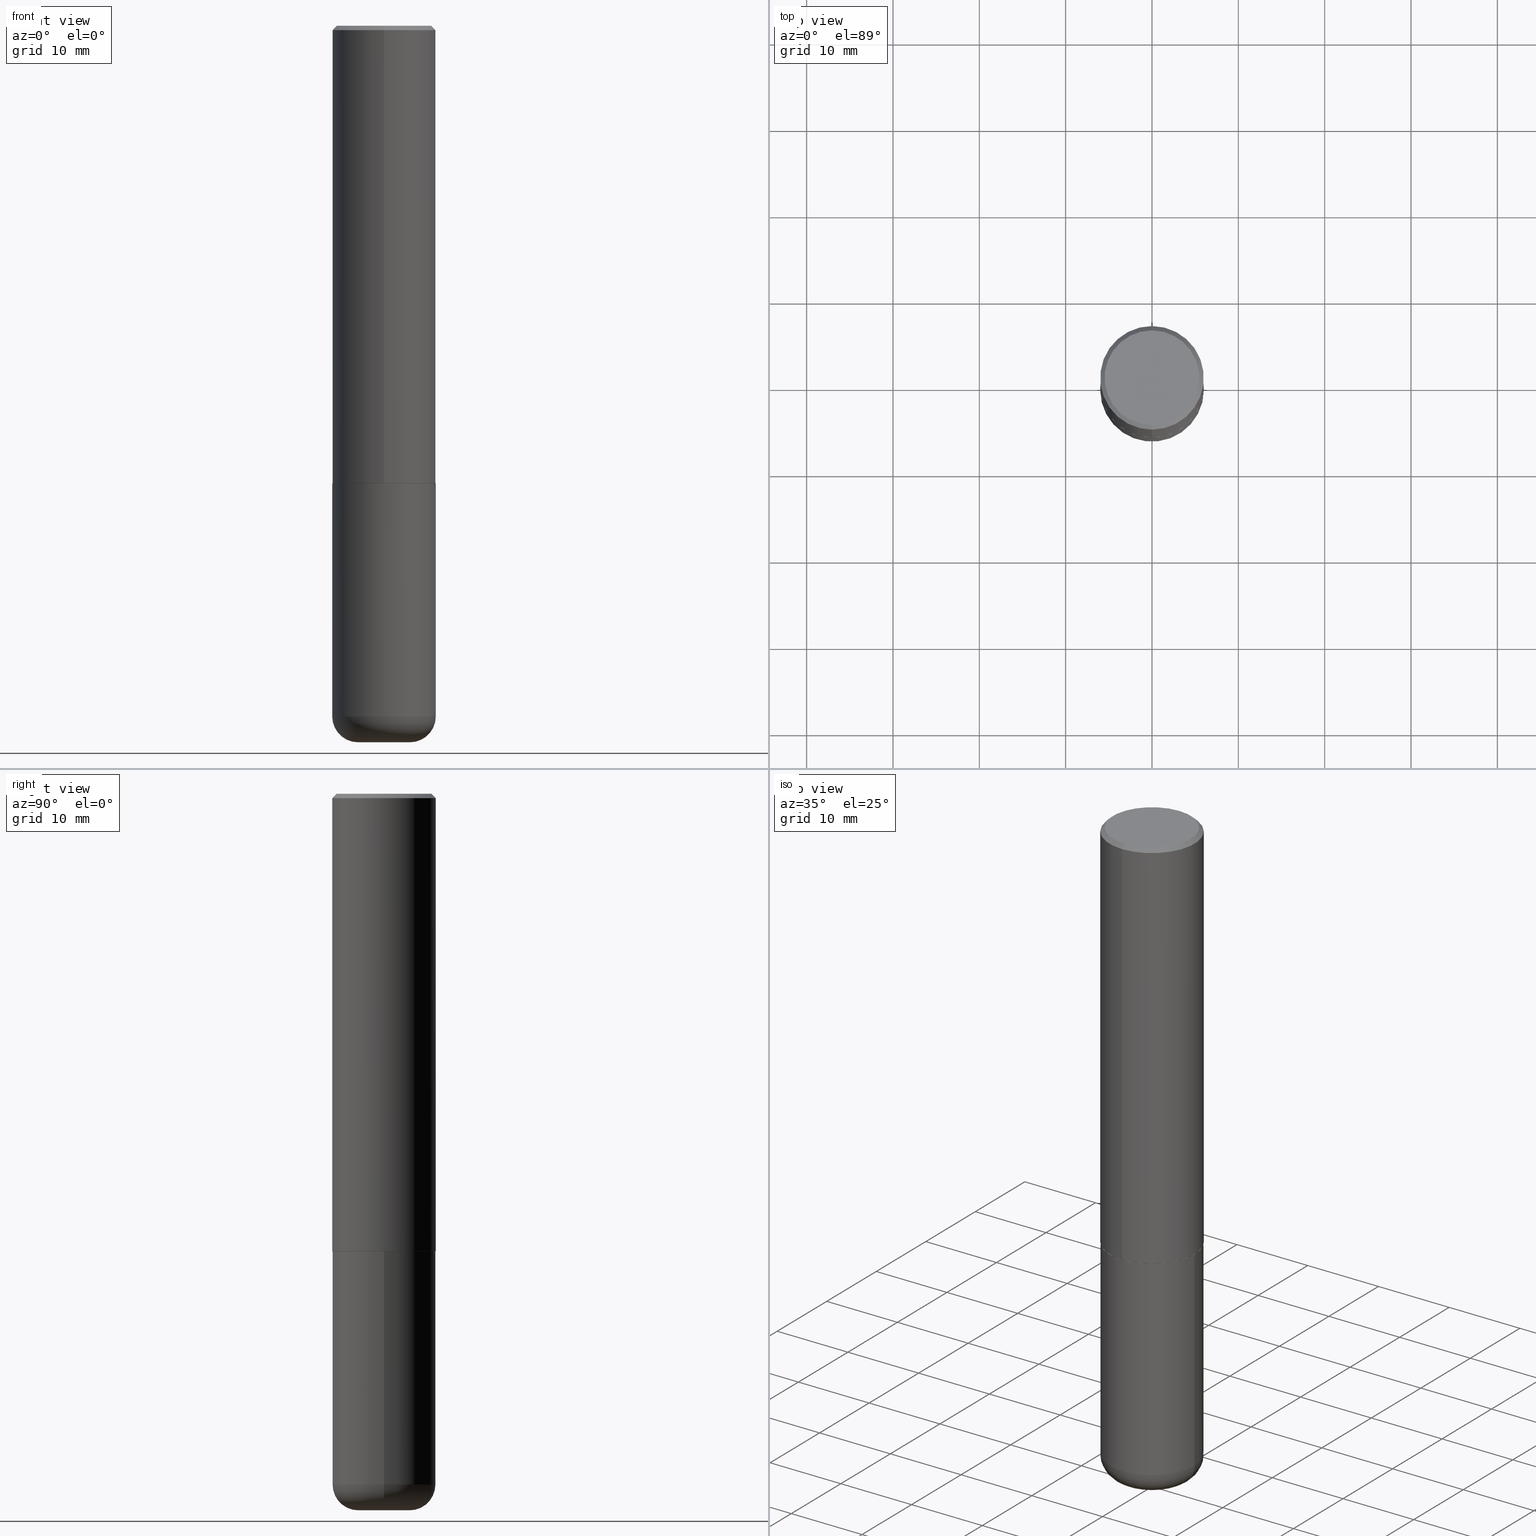
[diagram: canonical four-view strip — front | top / right | iso, engineering-drawing reading convention]
A machine part, canonical four-view strip (front | top / right | iso — engineering-drawing reading convention). The complete STEP part file that produces these views, byte-faithful:
ISO-10303-21;
HEADER;
FILE_DESCRIPTION (( 'STEP AP203' ),
    '1' );
FILE_NAME ('74690.STEP',
    '2024-05-02T19:14:01',
    ( '' ),
    ( '' ),
    'SwSTEP 2.0',
    'SolidWorks 2023',
    '' );
FILE_SCHEMA (( 'CONFIG_CONTROL_DESIGN' ));
ENDSEC;

DATA;
#1 = AXIS2_PLACEMENT_3D ( 'NONE', #161, #235, #263 ) ;
#2 = EDGE_LOOP ( 'NONE', ( #391, #107 ) ) ;
#3 = CC_DESIGN_PERSON_AND_ORGANIZATION_ASSIGNMENT ( #199, #99, ( #407 ) ) ;
#4 = DATE_AND_TIME ( #173, #131 ) ;
#5 = ORIENTED_EDGE ( 'NONE', *, *, #366, .F. ) ;
#6 = DIRECTION ( 'NONE',  ( -6.982962677686265922E-15, -1.000000000000000000, 3.490920090629483706E-15 ) ) ;
#7 = CONICAL_SURFACE ( 'NONE', #248, 0.2351999999999999924, 0.7853981633973970977 ) ;
#8 =( CONVERSION_BASED_UNIT ( 'INCH', #300 ) LENGTH_UNIT ( ) NAMED_UNIT ( #180 ) );
#9 = ORIENTED_EDGE ( 'NONE', *, *, #24, .F. ) ;
#10 = PERSON_AND_ORGANIZATION ( #216, #317 ) ;
#11 = PRODUCT_DEFINITION_SHAPE ( 'NONE', 'NONE',  #262 ) ;
#12 = ORIENTED_EDGE ( 'NONE', *, *, #245, .T. ) ;
#13 = SHAPE_DEFINITION_REPRESENTATION ( #11, #132 ) ;
#14 = CYLINDRICAL_SURFACE ( 'NONE', #213, 0.2361999999999999933 ) ;
#15 = AXIS2_PLACEMENT_3D ( 'NONE', #74, #127, #210 ) ;
#16 = LOCAL_TIME ( 15, 14, 1.000000000000000000, #357 ) ;
#17 = AXIS2_PLACEMENT_3D ( 'NONE', #360, #94, #335 ) ;
#18 = DIRECTION ( 'NONE',  ( 4.937700262164543309E-15, 0.7071067811865444641, -0.7071067811865506814 ) ) ;
#19 = EDGE_CURVE ( 'NONE', #200, #367, #59, .T. ) ;
#20 = CARTESIAN_POINT ( 'NONE',  ( 0.2361999999999999933, -1.649375784469496131E-15, 1.151752954443000088E-29 ) ) ;
#21 = DIRECTION ( 'NONE',  ( -4.937700262164294818E-15, -0.7071067811865088260, 0.7071067811865862085 ) ) ;
#22 = CIRCLE ( 'NONE', #170, 0.1181000000000000105 ) ;
#23 = DIRECTION ( 'NONE',  ( 1.000000000000000000, -6.982962677686265133E-15, 0.000000000000000000 ) ) ;
#24 = EDGE_CURVE ( 'NONE', #255, #192, #169, .T. ) ;
#25 = CARTESIAN_POINT ( 'NONE',  ( 1.674749228186607758E-15, 0.2351999999999927204, -2.086600000000001121 ) ) ;
#26 = UNCERTAINTY_MEASURE_WITH_UNIT (LENGTH_MEASURE( 1.000000000000000082E-05 ), #8, 'distance_accuracy_value', 'NONE');
#27 = ORIENTED_EDGE ( 'NONE', *, *, #44, .F. ) ;
#28 = CARTESIAN_POINT ( 'NONE',  ( 0.1180999999999999966, -1.182145751705512057E-14, -3.149600000000000399 ) ) ;
#29 = CONICAL_SURFACE ( 'NONE', #347, 0.2351999999999999924, 0.7853981633973970977 ) ;
#30 = CARTESIAN_POINT ( 'NONE',  ( 5.103532986110039868E-29, -7.284153861107481765E-15, -2.086600000000000232 ) ) ;
#31 = FACE_OUTER_BOUND ( 'NONE', #87, .T. ) ;
#32 = EDGE_LOOP ( 'NONE', ( #229, #253, #413, #318 ) ) ;
#33 = CYLINDRICAL_SURFACE ( 'NONE', #310, 0.2362000000000000766 ) ;
#34 = CARTESIAN_POINT ( 'NONE',  ( -0.2361999999999999933, -7.462745351359882680E-15, -2.086600000000000232 ) ) ;
#35 = AXIS2_PLACEMENT_3D ( 'NONE', #181, #273, #276 ) ;
#36 = APPROVAL ( #128, 'UNSPECIFIED' ) ;
#37 = APPLICATION_PROTOCOL_DEFINITION ( 'international standard', 'config_control_design', 1994, #158 ) ;
#38 = VERTEX_POINT ( 'NONE', #336 ) ;
#39 = PERSON_AND_ORGANIZATION ( #216, #317 ) ;
#40 = ORIENTED_EDGE ( 'NONE', *, *, #286, .T. ) ;
#41 = CARTESIAN_POINT ( 'NONE',  ( -3.651097613894796322E-45, 5.211126655576527214E-31, 1.492765952897207328E-16 ) ) ;
#42 = VECTOR ( 'NONE', #275, 39.37007874015748143 ) ;
#43 = DATE_AND_TIME ( #130, #16 ) ;
#44 = EDGE_CURVE ( 'NONE', #120, #136, #398, .T. ) ;
#45 = DATE_TIME_ROLE ( 'classification_date' ) ;
#46 = FACE_OUTER_BOUND ( 'NONE', #266, .T. ) ;
#47 = CARTESIAN_POINT ( 'NONE',  ( -3.651097613894796322E-45, 5.211126655576527214E-31, 1.492765952897207328E-16 ) ) ;
#48 = AXIS2_PLACEMENT_3D ( 'NONE', #80, #113, #79 ) ;
#49 = DATE_AND_TIME ( #241, #334 ) ;
#50 = DIRECTION ( 'NONE',  ( -2.445468806185136597E-29, 3.491481338843145583E-15, 1.000000000000000000 ) ) ;
#51 = PLANE ( 'NONE',  #35 ) ;
#52 = DIRECTION ( 'NONE',  ( -2.445468806185136597E-29, 3.491481338843145583E-15, 1.000000000000000000 ) ) ;
#53 = VECTOR ( 'NONE', #212, 39.37007874015748854 ) ;
#54 = CARTESIAN_POINT ( 'NONE',  ( -0.2361999999999998545, -9.318467682955017493E-15, -3.149600000000000399 ) ) ;
#55 = DIRECTION ( 'NONE',  ( 6.982962677686265922E-15, 1.000000000000000000, -3.487819265831412533E-15 ) ) ;
#56 = CARTESIAN_POINT ( 'NONE',  ( 0.2361999999999999933, -8.934700746099602364E-15, -2.086600000000000232 ) ) ;
#57 = ORIENTED_EDGE ( 'NONE', *, *, #76, .F. ) ;
#58 = EDGE_CURVE ( 'NONE', #289, #38, #376, .T. ) ;
#59 = CIRCLE ( 'NONE', #298, 0.2351999999999999924 ) ;
#60 = CIRCLE ( 'NONE', #299, 0.1180999999999997191 ) ;
#61 = DIRECTION ( 'NONE',  ( -6.982962677686265133E-15, -1.000000000000000000, 3.484499991918703113E-15 ) ) ;
#62 = DIRECTION ( 'NONE',  ( 2.438088387897960049E-29, -3.491481338843145188E-15, -1.000000000000000000 ) ) ;
#63 = VERTEX_POINT ( 'NONE', #34 ) ;
#64 = APPROVAL_DATE_TIME ( #356, #187 ) ;
#65 = EDGE_CURVE ( 'NONE', #264, #63, #332, .T. ) ;
#66 = PERSON_AND_ORGANIZATION_ROLE ( 'design_owner' ) ;
#67 =( GEOMETRIC_REPRESENTATION_CONTEXT ( 3 ) GLOBAL_UNCERTAINTY_ASSIGNED_CONTEXT ( ( #26 ) ) GLOBAL_UNIT_ASSIGNED_CONTEXT ( ( #8, #102, #165 ) ) REPRESENTATION_CONTEXT ( 'NONE', 'WORKASPACE' ) );
#68 = VERTEX_POINT ( 'NONE', #402 ) ;
#69 = MECHANICAL_CONTEXT ( 'NONE', #158, 'mechanical' ) ;
#70 = PERSON_AND_ORGANIZATION_ROLE ( 'creator' ) ;
#71 = EDGE_CURVE ( 'NONE', #192, #255, #293, .T. ) ;
#72 = VECTOR ( 'NONE', #21, 39.37007874015748143 ) ;
#73 = PRODUCT ( '74690', '74690', '', ( #69 ) ) ;
#74 = CARTESIAN_POINT ( 'NONE',  ( 7.702248551960706711E-29, -1.099676962482037231E-14, -3.149600000000000399 ) ) ;
#75 = CARTESIAN_POINT ( 'NONE',  ( 1.678301941865383018E-15, 0.2361999999999929711, -2.085600000000000787 ) ) ;
#76 = EDGE_CURVE ( 'NONE', #207, #120, #325, .T. ) ;
#77 = CARTESIAN_POINT ( 'NONE',  ( 1.671196514507806268E-15, 0.2351999999999927204, -2.086600000000001121 ) ) ;
#78 = CIRCLE ( 'NONE', #371, 0.2361999999999999933 ) ;
#79 = DIRECTION ( 'NONE',  ( -1.000000000000000000, 6.982962677686265922E-15, -4.876176775795935793E-29 ) ) ;
#80 = CARTESIAN_POINT ( 'NONE',  ( 1.854752379248560054E-28, 3.708345682062602648E-15, -3.267699999999999605 ) ) ;
#81 = MANIFOLD_SOLID_BREP ( 'Body-Move/Copy2[2]', #305 ) ;
#82 = AXIS2_PLACEMENT_3D ( 'NONE', #222, #350, #320 ) ;
#83 = CC_DESIGN_SECURITY_CLASSIFICATION ( #214, ( #407 ) ) ;
#84 = DIRECTION ( 'NONE',  ( -2.445860723718028373E-29, 3.490920090629483706E-15, 1.000000000000000000 ) ) ;
#85 = DIRECTION ( 'NONE',  ( -1.000000000000000000, 6.982962677686265922E-15, -4.876176775795935793E-29 ) ) ;
#86 = CC_DESIGN_PERSON_AND_ORGANIZATION_ASSIGNMENT ( #393, #70, ( #262 ) ) ;
#87 = EDGE_LOOP ( 'NONE', ( #329, #166 ) ) ;
#88 = DIRECTION ( 'NONE',  ( 1.000000000000000000, -6.982962677686265133E-15, 0.000000000000000000 ) ) ;
#89 = ORIENTED_EDGE ( 'NONE', *, *, #271, .T. ) ;
#90 = MANIFOLD_SOLID_BREP ( 'Body-Move/Copy2[1]', #193 ) ;
#91 = CARTESIAN_POINT ( 'NONE',  ( 5.103532986110038747E-29, -7.284153861107480187E-15, -2.086600000000000232 ) ) ;
#92 = ORIENTED_EDGE ( 'NONE', *, *, #137, .T. ) ;
#93 = ADVANCED_FACE ( 'NONE', ( #183 ), #340, .T. ) ;
#94 = DIRECTION ( 'NONE',  ( 0.000000000000000000, 0.000000000000000000, 1.000000000000000000 ) ) ;
#95 = ORIENTED_EDGE ( 'NONE', *, *, #145, .T. ) ;
#96 = ORIENTED_EDGE ( 'NONE', *, *, #65, .F. ) ;
#97 = APPROVAL_DATE_TIME ( #43, #36 ) ;
#98 = VECTOR ( 'NONE', #184, 39.37007874015748143 ) ;
#99 = PERSON_AND_ORGANIZATION_ROLE ( 'design_supplier' ) ;
#100 = DIRECTION ( 'NONE',  ( -2.445860723718028373E-29, 3.490920090629483706E-15, 1.000000000000000000 ) ) ;
#101 = ORIENTED_EDGE ( 'NONE', *, *, #257, .T. ) ;
#102 =( NAMED_UNIT ( * ) PLANE_ANGLE_UNIT ( ) SI_UNIT ( $, .RADIAN. ) );
#103 = ORIENTED_EDGE ( 'NONE', *, *, #19, .T. ) ;
#104 = ORIENTED_EDGE ( 'NONE', *, *, #344, .T. ) ;
#105 = CARTESIAN_POINT ( 'NONE',  ( 1.678301941865356789E-15, 0.2362000000000000766, -8.245553254066843076E-16 ) ) ;
#106 = AXIS2_PLACEMENT_3D ( 'NONE', #163, #294, #23 ) ;
#107 = ORIENTED_EDGE ( 'NONE', *, *, #71, .T. ) ;
#108 = AXIS2_PLACEMENT_3D ( 'NONE', #368, #111, #280 ) ;
#109 = DATE_AND_TIME ( #148, #348 ) ;
#110 = EDGE_CURVE ( 'NONE', #289, #63, #143, .T. ) ;
#111 = DIRECTION ( 'NONE',  ( -2.445860723718028373E-29, 3.490920090629483706E-15, 1.000000000000000000 ) ) ;
#112 = DIRECTION ( 'NONE',  ( 6.982962677686265922E-15, 1.000000000000000000, -3.487819265831412533E-15 ) ) ;
#113 = DIRECTION ( 'NONE',  ( 2.438088387897960049E-29, -3.491481338843145188E-15, -1.000000000000000000 ) ) ;
#114 = VECTOR ( 'NONE', #261, 39.37007874015748143 ) ;
#115 = LOCAL_TIME ( 15, 14, 1.000000000000000000, #228 ) ;
#116 = DIRECTION ( 'NONE',  ( 1.000000000000000000, -6.982962677686272233E-15, 0.000000000000000000 ) ) ;
#117 = ADVANCED_FACE ( 'NONE', ( #46 ), #359, .T. ) ;
#118 = CARTESIAN_POINT ( 'NONE',  ( 0.000000000000000000, 0.000000000000000000, 0.000000000000000000 ) ) ;
#119 = DIRECTION ( 'NONE',  ( -6.982962677686265133E-15, -1.000000000000000000, 3.484499991918703113E-15 ) ) ;
#120 = VERTEX_POINT ( 'NONE', #75 ) ;
#121 = DIRECTION ( 'NONE',  ( -2.445860723718028373E-29, 3.490920090629483706E-15, 1.000000000000000000 ) ) ;
#122 = DIRECTION ( 'NONE',  ( -2.445468806185136597E-29, 3.491481338843145583E-15, 1.000000000000000000 ) ) ;
#123 = DIRECTION ( 'NONE',  ( 2.445860723718028373E-29, -3.490920090629483706E-15, -1.000000000000000000 ) ) ;
#124 = CC_DESIGN_PERSON_AND_ORGANIZATION_ASSIGNMENT ( #39, #168, ( #407 ) ) ;
#125 = AXIS2_PLACEMENT_3D ( 'NONE', #345, #52, #242 ) ;
#126 = DIRECTION ( 'NONE',  ( -2.445860723718028373E-29, 3.490920090629483706E-15, 1.000000000000000000 ) ) ;
#127 = DIRECTION ( 'NONE',  ( -2.445468806185136597E-29, 3.491481338843145583E-15, 1.000000000000000000 ) ) ;
#128 = APPROVAL_STATUS ( 'not_yet_approved' ) ;
#129 = EDGE_LOOP ( 'NONE', ( #270, #89, #12, #5 ) ) ;
#130 = CALENDAR_DATE ( 2024, 2, 5 ) ;
#131 = LOCAL_TIME ( 15, 14, 1.000000000000000000, #295 ) ;
#132 = ADVANCED_BREP_SHAPE_REPRESENTATION ( '74690', ( #90, #81, #17 ), #67 ) ;
#133 =( LENGTH_UNIT ( ) NAMED_UNIT ( * ) SI_UNIT ( $, .METRE. ) );
#134 = ORIENTED_EDGE ( 'NONE', *, *, #366, .T. ) ;
#135 = CALENDAR_DATE ( 2024, 2, 5 ) ;
#136 = VERTEX_POINT ( 'NONE', #408 ) ;
#137 = EDGE_CURVE ( 'NONE', #285, #233, #278, .T. ) ;
#138 = FACE_OUTER_BOUND ( 'NONE', #227, .T. ) ;
#139 = CIRCLE ( 'NONE', #231, 0.2351999999999999924 ) ;
#140 = CONICAL_SURFACE ( 'NONE', #333, 0.2361999999999999378, 0.7853981633974473908 ) ;
#141 = COORDINATED_UNIVERSAL_TIME_OFFSET ( 5, 0, .BEHIND. ) ;
#142 = DIRECTION ( 'NONE',  ( 1.000000000000000000, -6.982962677686264344E-15, 4.883557194083111780E-29 ) ) ;
#143 = LINE ( 'NONE', #337, #42 ) ;
#144 = CARTESIAN_POINT ( 'NONE',  ( -1.642392821791758643E-15, -0.2352000000000072644, -2.086599999999999344 ) ) ;
#145 = EDGE_CURVE ( 'NONE', #38, #264, #178, .T. ) ;
#146 = CIRCLE ( 'NONE', #386, 0.2362000000000002431 ) ;
#147 = APPROVAL_PERSON_ORGANIZATION ( #269, #36, #328 ) ;
#148 = CALENDAR_DATE ( 2024, 2, 5 ) ;
#149 = DIRECTION ( 'NONE',  ( 2.445860723718028373E-29, -3.490920090629483706E-15, -1.000000000000000000 ) ) ;
#150 = DESIGN_CONTEXT ( 'detailed design', #189, 'design' ) ;
#151 = FACE_OUTER_BOUND ( 'NONE', #129, .T. ) ;
#152 = EDGE_CURVE ( 'NONE', #207, #68, #306, .T. ) ;
#153 = CARTESIAN_POINT ( 'NONE',  ( 5.102715210985906276E-29, -7.285324961630107416E-15, -2.086600000000000232 ) ) ;
#154 = AXIS2_PLACEMENT_3D ( 'NONE', #249, #307, #142 ) ;
#155 = APPROVAL_PERSON_ORGANIZATION ( #10, #187, #232 ) ;
#156 = DIRECTION ( 'NONE',  ( 1.000000000000000000, -6.982962677686273021E-15, 0.000000000000000000 ) ) ;
#157 = PLANE ( 'NONE',  #185 ) ;
#158 = APPLICATION_CONTEXT ( 'configuration controlled 3d designs of mechanical parts and assemblies' ) ;
#159 = FACE_OUTER_BOUND ( 'NONE', #351, .T. ) ;
#160 = EDGE_CURVE ( 'NONE', #255, #136, #211, .T. ) ;
#161 = CARTESIAN_POINT ( 'NONE',  ( 4.891721447436068727E-31, -6.981840181258985900E-17, -0.02000000000000005246 ) ) ;
#162 = APPROVAL_PERSON_ORGANIZATION ( #243, #323, #339 ) ;
#163 = CARTESIAN_POINT ( 'NONE',  ( 5.102715210985906276E-29, -7.285324961630107416E-15, -2.086600000000000232 ) ) ;
#164 = EDGE_LOOP ( 'NONE', ( #27, #134, #174, #204 ) ) ;
#165 =( NAMED_UNIT ( * ) SI_UNIT ( $, .STERADIAN. ) SOLID_ANGLE_UNIT ( ) );
#166 = ORIENTED_EDGE ( 'NONE', *, *, #271, .F. ) ;
#167 = ADVANCED_FACE ( 'NONE', ( #309 ), #353, .T. ) ;
#168 = PERSON_AND_ORGANIZATION_ROLE ( 'creator' ) ;
#169 = CIRCLE ( 'NONE', #223, 0.2161999999999997535 ) ;
#170 = AXIS2_PLACEMENT_3D ( 'NONE', #219, #122, #411 ) ;
#171 = DIRECTION ( 'NONE',  ( -6.982962677686266711E-15, -1.000000000000000000, 3.490920090629483706E-15 ) ) ;
#172 = ORIENTED_EDGE ( 'NONE', *, *, #110, .T. ) ;
#173 = CALENDAR_DATE ( 2024, 2, 5 ) ;
#174 = ORIENTED_EDGE ( 'NONE', *, *, #152, .T. ) ;
#175 = COORDINATED_UNIVERSAL_TIME_OFFSET ( 5, 0, .BEHIND. ) ;
#176 = CARTESIAN_POINT ( 'NONE',  ( 7.991058417971169471E-29, -1.140911357093774486E-14, -3.267699999999999605 ) ) ;
#177 = PERSON_AND_ORGANIZATION_ROLE ( 'classification_officer' ) ;
#178 = LINE ( 'NONE', #20, #400 ) ;
#179 = VECTOR ( 'NONE', #18, 39.37007874015748143 ) ;
#180 = DIMENSIONAL_EXPONENTS ( 1.000000000000000000, 0.000000000000000000, 0.000000000000000000, 0.000000000000000000, 0.000000000000000000, 0.000000000000000000, 0.000000000000000000 ) ;
#181 = CARTESIAN_POINT ( 'NONE',  ( 1.509716530915769140E-15, 0.2161999999999997535, -6.800986259492332687E-16 ) ) ;
#182 = ADVANCED_FACE ( 'NONE', ( #409 ), #14, .T. ) ;
#183 = FACE_OUTER_BOUND ( 'NONE', #399, .T. ) ;
#184 = DIRECTION ( 'NONE',  ( -2.445860723718028093E-29, 3.490920090629484100E-15, 1.000000000000000000 ) ) ;
#185 = AXIS2_PLACEMENT_3D ( 'NONE', #91, #226, #354 ) ;
#186 = DIRECTION ( 'NONE',  ( 1.000000000000000000, -6.982962677686264344E-15, 4.883557194083111780E-29 ) ) ;
#187 = APPROVAL ( #265, 'UNSPECIFIED' ) ;
#188 = DIRECTION ( 'NONE',  ( -2.445860723718028373E-29, 3.490920090629483706E-15, 1.000000000000000000 ) ) ;
#189 = APPLICATION_CONTEXT ( 'configuration controlled 3d designs of mechanical parts and assemblies' ) ;
#190 = ORIENTED_EDGE ( 'NONE', *, *, #145, .F. ) ;
#191 = DIRECTION ( 'NONE',  ( -2.445468806185136597E-29, 3.491481338843145583E-15, 1.000000000000000000 ) ) ;
#192 = VERTEX_POINT ( 'NONE', #370 ) ;
#193 = CLOSED_SHELL ( 'NONE', ( #182, #292, #373, #93, #117, #218 ) ) ;
#194 = ORIENTED_EDGE ( 'NONE', *, *, #65, .T. ) ;
#195 = DIRECTION ( 'NONE',  ( -6.982962677686266711E-15, -1.000000000000000000, 3.491481338843145583E-15 ) ) ;
#196 = EDGE_CURVE ( 'NONE', #367, #120, #251, .T. ) ;
#197 = DIRECTION ( 'NONE',  ( -6.982962677686265922E-15, -1.000000000000000000, 3.490920090629483706E-15 ) ) ;
#198 = ORIENTED_EDGE ( 'NONE', *, *, #160, .F. ) ;
#199 = PERSON_AND_ORGANIZATION ( #216, #317 ) ;
#200 = VERTEX_POINT ( 'NONE', #374 ) ;
#201 = CIRCLE ( 'NONE', #1, 0.2361999999999999378 ) ;
#202 = CARTESIAN_POINT ( 'NONE',  ( 0.000000000000000000, 0.000000000000000000, 0.000000000000000000 ) ) ;
#203 = CC_DESIGN_APPROVAL ( #323, ( #214 ) ) ;
#204 = ORIENTED_EDGE ( 'NONE', *, *, #410, .F. ) ;
#205 = PRODUCT_RELATED_PRODUCT_CATEGORY ( 'detail', '', ( #73 ) ) ;
#206 = SECURITY_CLASSIFICATION_LEVEL ( 'unclassified' ) ;
#207 = VERTEX_POINT ( 'NONE', #342 ) ;
#208 = CC_DESIGN_DATE_AND_TIME_ASSIGNMENT ( #4, #267, ( #262 ) ) ;
#209 = AXIS2_PLACEMENT_3D ( 'NONE', #382, #62, #85 ) ;
#210 = DIRECTION ( 'NONE',  ( 1.000000000000000000, -6.982962677686265133E-15, 0.000000000000000000 ) ) ;
#211 = LINE ( 'NONE', #247, #179 ) ;
#212 = DIRECTION ( 'NONE',  ( 5.024295867787803643E-15, 0.7071067811865135999, 0.7071067811865812125 ) ) ;
#213 = AXIS2_PLACEMENT_3D ( 'NONE', #118, #215, #277 ) ;
#214 = SECURITY_CLASSIFICATION ( '', '', #206 ) ;
#215 = DIRECTION ( 'NONE',  ( -2.445468806185136597E-29, 3.491481338843145583E-15, 1.000000000000000000 ) ) ;
#216 = PERSON ( 'UNSPECIFIED', 'UNSPECIFIED', 'UNSPECIFIED', ('UNSPECIFIED'), ('UNSPECIFIED'), ('UNSPECIFIED') ) ;
#217 = DIRECTION ( 'NONE',  ( -6.982962677686266711E-15, -1.000000000000000000, 3.490920090629483706E-15 ) ) ;
#218 = ADVANCED_FACE ( 'NONE', ( #138 ), #372, .T. ) ;
#219 = CARTESIAN_POINT ( 'NONE',  ( 7.991058417971169471E-29, -1.140911357093774486E-14, -3.267699999999999605 ) ) ;
#220 = ORIENTED_EDGE ( 'NONE', *, *, #160, .T. ) ;
#221 = CARTESIAN_POINT ( 'NONE',  ( 5.101087125386319798E-29, -7.280662941016851690E-15, -2.085599999999999898 ) ) ;
#222 = CARTESIAN_POINT ( 'NONE',  ( -0.1180999999999999966, -1.015761865388769332E-14, -3.149600000000000399 ) ) ;
#223 = AXIS2_PLACEMENT_3D ( 'NONE', #41, #363, #171 ) ;
#224 = AXIS2_PLACEMENT_3D ( 'NONE', #322, #287, #414 ) ;
#225 = ADVANCED_FACE ( 'NONE', ( #343 ), #51, .F. ) ;
#226 = DIRECTION ( 'NONE',  ( -2.445860723718027813E-29, 3.490920090629484100E-15, 1.000000000000000000 ) ) ;
#227 = EDGE_LOOP ( 'NONE', ( #272, #389 ) ) ;
#228 = COORDINATED_UNIVERSAL_TIME_OFFSET ( 5, 0, .BEHIND. ) ;
#229 = ORIENTED_EDGE ( 'NONE', *, *, #76, .T. ) ;
#230 = ORIENTED_EDGE ( 'NONE', *, *, #387, .T. ) ;
#231 = AXIS2_PLACEMENT_3D ( 'NONE', #352, #283, #119 ) ;
#232 = APPROVAL_ROLE ( '' ) ;
#233 = VERTEX_POINT ( 'NONE', #308 ) ;
#234 = EDGE_LOOP ( 'NONE', ( #101, #230, #259, #369 ) ) ;
#235 = DIRECTION ( 'NONE',  ( -2.445860723718028373E-29, 3.490920090629483706E-15, 1.000000000000000000 ) ) ;
#236 = ORIENTED_EDGE ( 'NONE', *, *, #58, .T. ) ;
#237 = CC_DESIGN_PERSON_AND_ORGANIZATION_ASSIGNMENT ( #390, #66, ( #73 ) ) ;
#238 = AXIS2_PLACEMENT_3D ( 'NONE', #202, #396, #6 ) ;
#239 = DIRECTION ( 'NONE',  ( -2.445860723718028093E-29, 3.490920090629484100E-15, 1.000000000000000000 ) ) ;
#240 = EDGE_LOOP ( 'NONE', ( #104, #172, #96, #190 ) ) ;
#241 = CALENDAR_DATE ( 2024, 2, 5 ) ;
#242 = DIRECTION ( 'NONE',  ( 1.000000000000000000, -6.982962677686266711E-15, 4.876176775795936353E-29 ) ) ;
#243 = PERSON_AND_ORGANIZATION ( #216, #317 ) ;
#244 = DIRECTION ( 'NONE',  ( -2.445860723718028373E-29, 3.490920090629483706E-15, 1.000000000000000000 ) ) ;
#245 = EDGE_CURVE ( 'NONE', #200, #207, #404, .T. ) ;
#246 = APPROVAL_STATUS ( 'not_yet_approved' ) ;
#247 = CARTESIAN_POINT ( 'NONE',  ( 1.649375784469495934E-15, 0.2361999999999998545, -0.02000000000000087472 ) ) ;
#248 = AXIS2_PLACEMENT_3D ( 'NONE', #30, #84, #61 ) ;
#249 = CARTESIAN_POINT ( 'NONE',  ( 7.702248551960706711E-29, -1.099676962482037231E-14, -3.149600000000000399 ) ) ;
#250 = ADVANCED_FACE ( 'NONE', ( #159 ), #140, .T. ) ;
#251 = LINE ( 'NONE', #77, #53 ) ;
#252 = CARTESIAN_POINT ( 'NONE',  ( 5.103532986110039868E-29, -7.284153861107481765E-15, -2.086600000000000232 ) ) ;
#253 = ORIENTED_EDGE ( 'NONE', *, *, #44, .T. ) ;
#254 = PLANE ( 'NONE',  #209 ) ;
#255 = VERTEX_POINT ( 'NONE', #388 ) ;
#256 = FACE_OUTER_BOUND ( 'NONE', #164, .T. ) ;
#257 = EDGE_CURVE ( 'NONE', #233, #285, #22, .T. ) ;
#258 = DIRECTION ( 'NONE',  ( -2.445860723718028373E-29, 3.490920090629483706E-15, 1.000000000000000000 ) ) ;
#259 = ORIENTED_EDGE ( 'NONE', *, *, #344, .F. ) ;
#260 = CIRCLE ( 'NONE', #82, 0.1180999999999997191 ) ;
#261 = DIRECTION ( 'NONE',  ( -4.851104656540959542E-15, -0.7071067811865493491, -0.7071067811865457964 ) ) ;
#262 = PRODUCT_DEFINITION ( 'UNKNOWN', '', #407, #150 ) ;
#263 = DIRECTION ( 'NONE',  ( -6.982962677686265922E-15, -1.000000000000000000, 3.487819265831412533E-15 ) ) ;
#264 = VERTEX_POINT ( 'NONE', #56 ) ;
#265 = APPROVAL_STATUS ( 'not_yet_approved' ) ;
#266 = EDGE_LOOP ( 'NONE', ( #358, #92, #417, #324 ) ) ;
#267 = DATE_TIME_ROLE ( 'creation_date' ) ;
#268 = ORIENTED_EDGE ( 'NONE', *, *, #110, .F. ) ;
#269 = PERSON_AND_ORGANIZATION ( #216, #317 ) ;
#270 = ORIENTED_EDGE ( 'NONE', *, *, #196, .F. ) ;
#271 = EDGE_CURVE ( 'NONE', #367, #200, #139, .T. ) ;
#272 = ORIENTED_EDGE ( 'NONE', *, *, #257, .F. ) ;
#273 = DIRECTION ( 'NONE',  ( 2.445860723718027813E-29, -3.490920090629484100E-15, -1.000000000000000000 ) ) ;
#274 = ADVANCED_FACE ( 'NONE', ( #151 ), #29, .T. ) ;
#275 = DIRECTION ( 'NONE',  ( -2.445468806185136877E-29, 3.491481338843145188E-15, 1.000000000000000000 ) ) ;
#276 = DIRECTION ( 'NONE',  ( 6.982962677686265922E-15, 1.000000000000000000, -3.490920090629484100E-15 ) ) ;
#277 = DIRECTION ( 'NONE',  ( 1.000000000000000000, -6.982962677686266711E-15, 4.876176775795936353E-29 ) ) ;
#278 = CIRCLE ( 'NONE', #365, 0.1181000000000000105 ) ;
#279 = EDGE_CURVE ( 'NONE', #68, #136, #284, .T. ) ;
#280 = DIRECTION ( 'NONE',  ( -6.982962677686265922E-15, -1.000000000000000000, 3.469747663417773452E-15 ) ) ;
#281 = DIRECTION ( 'NONE',  ( -6.982962677686265133E-15, -1.000000000000000000, 3.484499991918703113E-15 ) ) ;
#282 = ORIENTED_EDGE ( 'NONE', *, *, #338, .F. ) ;
#283 = DIRECTION ( 'NONE',  ( -2.445860723718028373E-29, 3.490920090629483706E-15, 1.000000000000000000 ) ) ;
#284 = CIRCLE ( 'NONE', #341, 0.2361999999999999378 ) ;
#285 = VERTEX_POINT ( 'NONE', #346 ) ;
#286 = EDGE_CURVE ( 'NONE', #63, #264, #78, .T. ) ;
#287 = DIRECTION ( 'NONE',  ( -2.445468806185136597E-29, 3.491481338843145583E-15, 1.000000000000000000 ) ) ;
#288 = CARTESIAN_POINT ( 'NONE',  ( 4.891721447436068727E-31, -6.981840181258985900E-17, -0.02000000000000005246 ) ) ;
#289 = VERTEX_POINT ( 'NONE', #54 ) ;
#290 = LINE ( 'NONE', #385, #114 ) ;
#291 = VECTOR ( 'NONE', #239, 39.37007874015748143 ) ;
#292 = ADVANCED_FACE ( 'NONE', ( #418 ), #392, .T. ) ;
#293 = CIRCLE ( 'NONE', #379, 0.2161999999999997535 ) ;
#294 = DIRECTION ( 'NONE',  ( -2.445468806185136597E-29, 3.491481338843145583E-15, 1.000000000000000000 ) ) ;
#295 = COORDINATED_UNIVERSAL_TIME_OFFSET ( 5, 0, .BEHIND. ) ;
#296 = ORIENTED_EDGE ( 'NONE', *, *, #196, .T. ) ;
#297 = PERSON_AND_ORGANIZATION ( #216, #317 ) ;
#298 = AXIS2_PLACEMENT_3D ( 'NONE', #394, #100, #331 ) ;
#299 = AXIS2_PLACEMENT_3D ( 'NONE', #28, #195, #156 ) ;
#300 = LENGTH_MEASURE_WITH_UNIT ( LENGTH_MEASURE( 0.02539999999999999897 ), #133 );
#301 = ADVANCED_FACE ( 'NONE', ( #256 ), #33, .T. ) ;
#302 = APPROVAL_DATE_TIME ( #49, #323 ) ;
#303 = CARTESIAN_POINT ( 'NONE',  ( -1.649375784469496525E-15, -0.2362000000000000766, 8.245553254066843076E-16 ) ) ;
#304 = CC_DESIGN_DATE_AND_TIME_ASSIGNMENT ( #109, #45, ( #214 ) ) ;
#305 = CLOSED_SHELL ( 'NONE', ( #311, #416, #250, #167, #301, #274, #405, #225 ) ) ;
#306 = LINE ( 'NONE', #303, #98 ) ;
#307 = DIRECTION ( 'NONE',  ( -2.445468806185136597E-29, 3.491481338843145583E-15, 1.000000000000000000 ) ) ;
#308 = CARTESIAN_POINT ( 'NONE',  ( 0.1181000000000000105, -1.223380146317249313E-14, -3.267699999999999605 ) ) ;
#309 = FACE_OUTER_BOUND ( 'NONE', #364, .T. ) ;
#310 = AXIS2_PLACEMENT_3D ( 'NONE', #315, #258, #197 ) ;
#311 = ADVANCED_FACE ( 'NONE', ( #313 ), #7, .T. ) ;
#312 = DIRECTION ( 'NONE',  ( -6.982962677686265922E-15, -1.000000000000000000, 3.469747663417773452E-15 ) ) ;
#313 = FACE_OUTER_BOUND ( 'NONE', #383, .T. ) ;
#314 = EDGE_CURVE ( 'NONE', #233, #38, #60, .T. ) ;
#315 = CARTESIAN_POINT ( 'NONE',  ( 0.000000000000000000, 0.000000000000000000, 0.000000000000000000 ) ) ;
#316 = AXIS2_PLACEMENT_3D ( 'NONE', #349, #191, #186 ) ;
#317 = ORGANIZATION ( 'UNSPECIFIED', 'UNSPECIFIED', '' ) ;
#318 = ORIENTED_EDGE ( 'NONE', *, *, #152, .F. ) ;
#319 = EDGE_LOOP ( 'NONE', ( #194, #40 ) ) ;
#320 = DIRECTION ( 'NONE',  ( -1.000000000000000000, 7.105427357601005014E-15, 0.000000000000000000 ) ) ;
#321 = ORIENTED_EDGE ( 'NONE', *, *, #279, .T. ) ;
#322 = CARTESIAN_POINT ( 'NONE',  ( 7.702248551960706711E-29, -1.099676962482037231E-14, -3.149600000000000399 ) ) ;
#323 = APPROVAL ( #246, 'UNSPECIFIED' ) ;
#324 = ORIENTED_EDGE ( 'NONE', *, *, #58, .F. ) ;
#325 = CIRCLE ( 'NONE', #108, 0.2362000000000002431 ) ;
#326 = FACE_OUTER_BOUND ( 'NONE', #32, .T. ) ;
#327 = ORIENTED_EDGE ( 'NONE', *, *, #71, .F. ) ;
#328 = APPROVAL_ROLE ( '' ) ;
#329 = ORIENTED_EDGE ( 'NONE', *, *, #19, .F. ) ;
#330 = CYLINDRICAL_SURFACE ( 'NONE', #238, 0.2362000000000000766 ) ;
#331 = DIRECTION ( 'NONE',  ( -6.982962677686265133E-15, -1.000000000000000000, 3.484499991918703113E-15 ) ) ;
#332 = CIRCLE ( 'NONE', #106, 0.2361999999999999933 ) ;
#333 = AXIS2_PLACEMENT_3D ( 'NONE', #415, #123, #55 ) ;
#334 = LOCAL_TIME ( 15, 14, 1.000000000000000000, #175 ) ;
#335 = DIRECTION ( 'NONE',  ( 1.000000000000000000, 0.000000000000000000, 0.000000000000000000 ) ) ;
#336 = CARTESIAN_POINT ( 'NONE',  ( 0.2361999999999998545, -1.264614540928986883E-14, -3.149600000000000399 ) ) ;
#337 = CARTESIAN_POINT ( 'NONE',  ( -0.2361999999999999933, 1.678301941865356591E-15, -1.161852468318208757E-29 ) ) ;
#338 = EDGE_CURVE ( 'NONE', #192, #68, #290, .T. ) ;
#339 = APPROVAL_ROLE ( '' ) ;
#340 = CYLINDRICAL_SURFACE ( 'NONE', #125, 0.2361999999999999933 ) ;
#341 = AXIS2_PLACEMENT_3D ( 'NONE', #288, #126, #378 ) ;
#342 = CARTESIAN_POINT ( 'NONE',  ( -1.649375784469446630E-15, -0.2362000000000075151, -2.085599999999999010 ) ) ;
#343 = FACE_OUTER_BOUND ( 'NONE', #2, .T. ) ;
#344 = EDGE_CURVE ( 'NONE', #38, #289, #406, .T. ) ;
#345 = CARTESIAN_POINT ( 'NONE',  ( 0.000000000000000000, 0.000000000000000000, 0.000000000000000000 ) ) ;
#346 = CARTESIAN_POINT ( 'NONE',  ( -0.1181000000000000383, -9.944215141480041685E-15, -3.267699999999999605 ) ) ;
#347 = AXIS2_PLACEMENT_3D ( 'NONE', #252, #188, #281 ) ;
#348 = LOCAL_TIME ( 15, 14, 1.000000000000000000, #141 ) ;
#349 = CARTESIAN_POINT ( 'NONE',  ( 7.702248551960706711E-29, -1.099676962482037231E-14, -3.149600000000000399 ) ) ;
#350 = DIRECTION ( 'NONE',  ( 7.105427357601001859E-15, 1.000000000000000000, -3.491481338843145583E-15 ) ) ;
#351 = EDGE_LOOP ( 'NONE', ( #327, #395, #321, #198 ) ) ;
#352 = CARTESIAN_POINT ( 'NONE',  ( 5.103532986110039868E-29, -7.284153861107481765E-15, -2.086600000000000232 ) ) ;
#353 = CONICAL_SURFACE ( 'NONE', #377, 0.2361999999999999378, 0.7853981633974473908 ) ;
#354 = DIRECTION ( 'NONE',  ( -6.982962677686265922E-15, -1.000000000000000000, 3.490920090629484100E-15 ) ) ;
#355 = ORIENTED_EDGE ( 'NONE', *, *, #410, .T. ) ;
#356 = DATE_AND_TIME ( #135, #115 ) ;
#357 = COORDINATED_UNIVERSAL_TIME_OFFSET ( 5, 0, .BEHIND. ) ;
#358 = ORIENTED_EDGE ( 'NONE', *, *, #387, .F. ) ;
#359 = TOROIDAL_SURFACE ( 'NONE', #154, 0.1180999999999999966, 0.1180999999999997468 ) ;
#360 = CARTESIAN_POINT ( 'NONE',  ( 0.000000000000000000, 0.000000000000000000, 0.000000000000000000 ) ) ;
#361 = CC_DESIGN_PERSON_AND_ORGANIZATION_ASSIGNMENT ( #297, #177, ( #214 ) ) ;
#362 = APPLICATION_PROTOCOL_DEFINITION ( 'international standard', 'config_control_design', 1994, #189 ) ;
#363 = DIRECTION ( 'NONE',  ( -2.445860723718028373E-29, 3.490920090629483706E-15, 1.000000000000000000 ) ) ;
#364 = EDGE_LOOP ( 'NONE', ( #282, #9, #220, #355 ) ) ;
#365 = AXIS2_PLACEMENT_3D ( 'NONE', #176, #50, #116 ) ;
#366 = EDGE_CURVE ( 'NONE', #120, #207, #146, .T. ) ;
#367 = VERTEX_POINT ( 'NONE', #25 ) ;
#368 = CARTESIAN_POINT ( 'NONE',  ( 5.101087125386319798E-29, -7.280662941016851690E-15, -2.085599999999999898 ) ) ;
#369 = ORIENTED_EDGE ( 'NONE', *, *, #314, .F. ) ;
#370 = CARTESIAN_POINT ( 'NONE',  ( -1.551844647095918761E-15, -0.2161999999999997535, 9.040135188838143063E-16 ) ) ;
#371 = AXIS2_PLACEMENT_3D ( 'NONE', #153, #384, #88 ) ;
#372 = PLANE ( 'NONE',  #48 ) ;
#373 = ADVANCED_FACE ( 'NONE', ( #412 ), #254, .F. ) ;
#374 = CARTESIAN_POINT ( 'NONE',  ( -1.642392821791758643E-15, -0.2352000000000072644, -2.086599999999999344 ) ) ;
#375 = DIRECTION ( 'NONE',  ( -2.445468806185136877E-29, 3.491481338843145188E-15, 1.000000000000000000 ) ) ;
#376 = CIRCLE ( 'NONE', #15, 0.2361999999999999933 ) ;
#377 = AXIS2_PLACEMENT_3D ( 'NONE', #403, #149, #112 ) ;
#378 = DIRECTION ( 'NONE',  ( -6.982962677686265922E-15, -1.000000000000000000, 3.487819265831412533E-15 ) ) ;
#379 = AXIS2_PLACEMENT_3D ( 'NONE', #47, #244, #217 ) ;
#380 = CC_DESIGN_APPROVAL ( #36, ( #262 ) ) ;
#381 = ORIENTED_EDGE ( 'NONE', *, *, #286, .F. ) ;
#382 = CARTESIAN_POINT ( 'NONE',  ( 5.102715210985906276E-29, -7.285324961630107416E-15, -2.086600000000000232 ) ) ;
#383 = EDGE_LOOP ( 'NONE', ( #103, #296, #57, #397 ) ) ;
#384 = DIRECTION ( 'NONE',  ( -2.445468806185136597E-29, 3.491481338843145583E-15, 1.000000000000000000 ) ) ;
#385 = CARTESIAN_POINT ( 'NONE',  ( -1.620449627073634487E-15, -0.2361999999999999933, -0.01999999999999922673 ) ) ;
#386 = AXIS2_PLACEMENT_3D ( 'NONE', #221, #121, #312 ) ;
#387 = EDGE_CURVE ( 'NONE', #285, #289, #260, .T. ) ;
#388 = CARTESIAN_POINT ( 'NONE',  ( 1.579546157692632438E-15, 0.2161999999999997535, -6.054603283043727914E-16 ) ) ;
#389 = ORIENTED_EDGE ( 'NONE', *, *, #137, .F. ) ;
#390 = PERSON_AND_ORGANIZATION ( #216, #317 ) ;
#391 = ORIENTED_EDGE ( 'NONE', *, *, #24, .T. ) ;
#392 = TOROIDAL_SURFACE ( 'NONE', #316, 0.1180999999999999966, 0.1180999999999997468 ) ;
#393 = PERSON_AND_ORGANIZATION ( #216, #317 ) ;
#394 = CARTESIAN_POINT ( 'NONE',  ( 5.103532986110039868E-29, -7.284153861107481765E-15, -2.086600000000000232 ) ) ;
#395 = ORIENTED_EDGE ( 'NONE', *, *, #338, .T. ) ;
#396 = DIRECTION ( 'NONE',  ( -2.445860723718028373E-29, 3.490920090629483706E-15, 1.000000000000000000 ) ) ;
#397 = ORIENTED_EDGE ( 'NONE', *, *, #245, .F. ) ;
#398 = LINE ( 'NONE', #105, #291 ) ;
#399 = EDGE_LOOP ( 'NONE', ( #268, #236, #95, #381 ) ) ;
#400 = VECTOR ( 'NONE', #375, 39.37007874015748143 ) ;
#401 = CC_DESIGN_APPROVAL ( #187, ( #407 ) ) ;
#402 = CARTESIAN_POINT ( 'NONE',  ( -1.620449627073634487E-15, -0.2361999999999999933, -0.01999999999999922673 ) ) ;
#403 = CARTESIAN_POINT ( 'NONE',  ( 4.891721447436068727E-31, -6.981840181258985900E-17, -0.02000000000000005246 ) ) ;
#404 = LINE ( 'NONE', #144, #72 ) ;
#405 = ADVANCED_FACE ( 'NONE', ( #31 ), #157, .F. ) ;
#406 = CIRCLE ( 'NONE', #224, 0.2361999999999999933 ) ;
#407 = PRODUCT_DEFINITION_FORMATION_WITH_SPECIFIED_SOURCE ( 'ANY', '', #73, .NOT_KNOWN. ) ;
#408 = CARTESIAN_POINT ( 'NONE',  ( 1.649375784469495934E-15, 0.2361999999999998545, -0.02000000000000087472 ) ) ;
#409 = FACE_OUTER_BOUND ( 'NONE', #240, .T. ) ;
#410 = EDGE_CURVE ( 'NONE', #136, #68, #201, .T. ) ;
#411 = DIRECTION ( 'NONE',  ( 1.000000000000000000, -6.982962677686272233E-15, 0.000000000000000000 ) ) ;
#412 = FACE_OUTER_BOUND ( 'NONE', #319, .T. ) ;
#413 = ORIENTED_EDGE ( 'NONE', *, *, #279, .F. ) ;
#414 = DIRECTION ( 'NONE',  ( 1.000000000000000000, -6.982962677686265133E-15, 0.000000000000000000 ) ) ;
#415 = CARTESIAN_POINT ( 'NONE',  ( 4.891721447436068727E-31, -6.981840181258985900E-17, -0.02000000000000005246 ) ) ;
#416 = ADVANCED_FACE ( 'NONE', ( #326 ), #330, .T. ) ;
#417 = ORIENTED_EDGE ( 'NONE', *, *, #314, .T. ) ;
#418 = FACE_OUTER_BOUND ( 'NONE', #234, .T. ) ;
ENDSEC;
END-ISO-10303-21;
